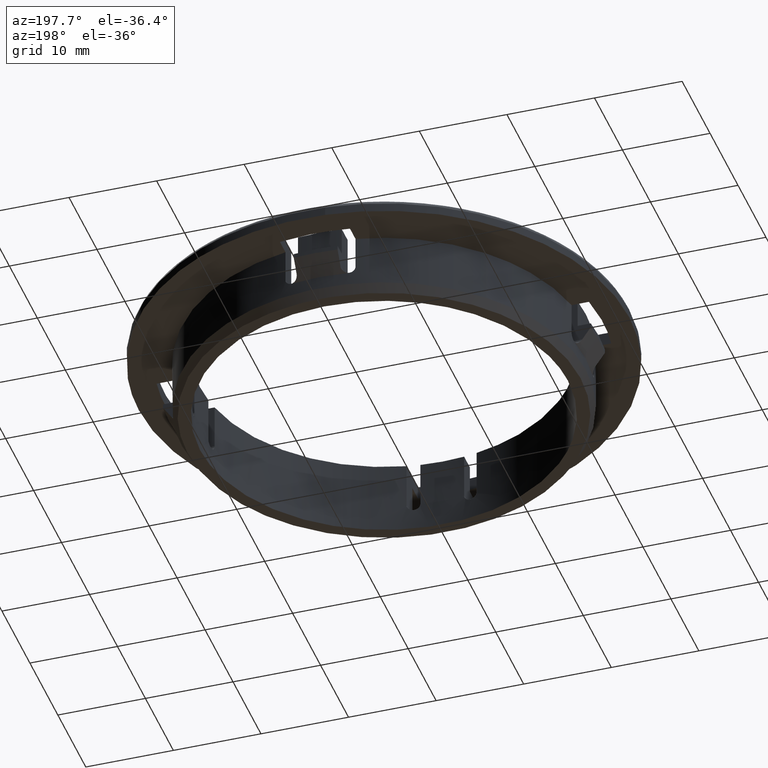
[diagram: clean part render]
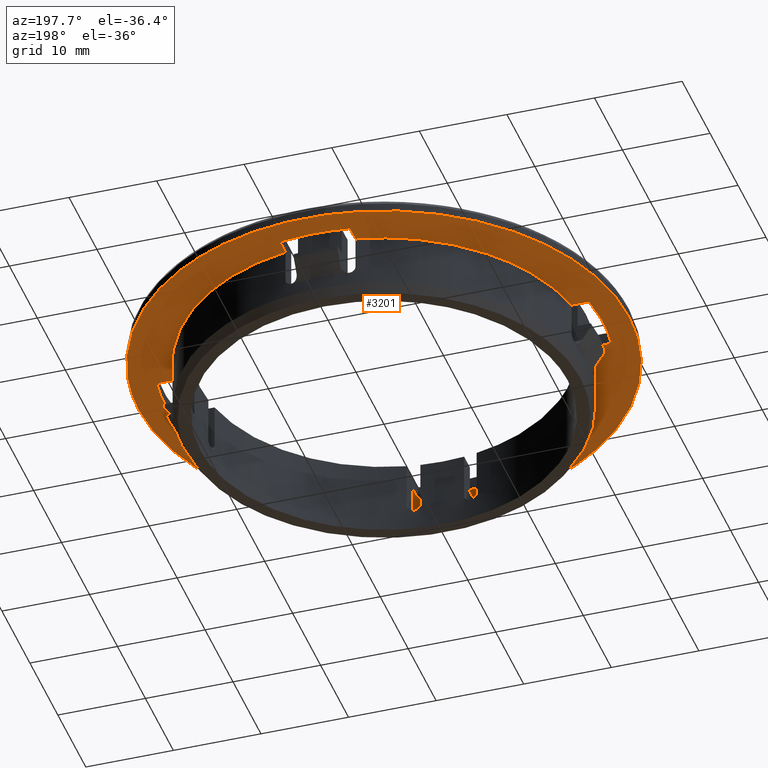
[diagram: same view with one face highlighted and labeled with its STEP entity id]
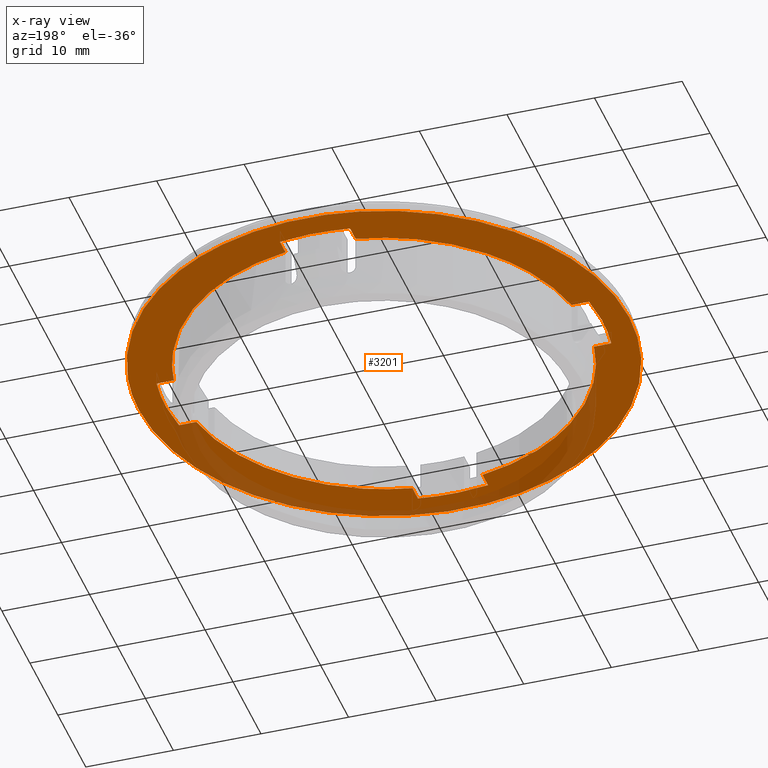
[diagram: x-ray of the same camera — body ghosted, the highlighted face saturated]
A machine part, auxiliary view. The second image highlights one B-rep face of the part: STEP entity #3201.
The next image is the same camera in x-ray: the body ghosted, the highlighted face saturated — about 17% of this face is hidden behind the body in this view.
In plain terms, the highlighted face is a freeform B-spline surface patch.
Its self-contained STEP definition (entity closure, byte-faithful):
#365=CARTESIAN_POINT('',(-2.196838642496592,27.913686606727079,7.0));
#366=VERTEX_POINT('',#365);
#372=CARTESIAN_POINT('',(-28.0,0.0,7.0));
#373=VERTEX_POINT('',#372);
#374=CARTESIAN_POINT('',(-28.0,0.0,7.0));
#375=CARTESIAN_POINT('',(-27.999999999999996,25.882948683526781,6.999999999999998));
#376=CARTESIAN_POINT('',(-2.196838642496591,27.913686606727079,7.0));
#384=(BOUNDED_CURVE()B_SPLINE_CURVE(2,(#374,#375,#376),.UNSPECIFIED.,.F.,.U.)B_SPLINE_CURVE_WITH_KNOTS((3,3),(0.0,0.236331399125175),.UNSPECIFIED.)CURVE()GEOMETRIC_REPRESENTATION_ITEM()RATIONAL_B_SPLINE_CURVE((1.0,0.723120543214163,0.969723561718049))REPRESENTATION_ITEM(''));
#385=EDGE_CURVE('',#373,#366,#384,.T.);
#387=CARTESIAN_POINT('',(28.0,0.0,7.0));
#388=VERTEX_POINT('',#387);
#389=CARTESIAN_POINT('',(28.0,0.0,7.0));
#390=CARTESIAN_POINT('',(28.000000000000004,-28.000000000000004,6.999999999999999));
#391=CARTESIAN_POINT('',(0.0,-28.0,7.0));
#392=CARTESIAN_POINT('',(-28.000000000000004,-28.000000000000004,6.999999999999999));
#393=CARTESIAN_POINT('',(-28.0,0.0,7.0));
#401=(BOUNDED_CURVE()B_SPLINE_CURVE(2,(#389,#390,#391,#392,#393),.UNSPECIFIED.,.F.,.U.)B_SPLINE_CURVE_WITH_KNOTS((3,2,3),(0.500000000000000,0.750000000000000,1.0),.UNSPECIFIED.)CURVE()GEOMETRIC_REPRESENTATION_ITEM()RATIONAL_B_SPLINE_CURVE((1.0,0.707106781186547,1.0,0.707106781186547,1.0))REPRESENTATION_ITEM(''));
#402=EDGE_CURVE('',#388,#373,#401,.T.);
#404=CARTESIAN_POINT('',(15.983521686752010,22.989715841851840,7.0));
#405=VERTEX_POINT('',#404);
#406=CARTESIAN_POINT('',(15.983521686752002,22.989715841851840,7.000000000000001));
#407=CARTESIAN_POINT('',(28.0,14.635300196203909,7.0));
#408=CARTESIAN_POINT('',(28.0,0.0,7.0));
#416=(BOUNDED_CURVE()B_SPLINE_CURVE(2,(#406,#407,#408),.UNSPECIFIED.,.F.,.U.)B_SPLINE_CURVE_WITH_KNOTS((3,3),(0.348090577032411,0.500000000000000),.UNSPECIFIED.)CURVE()GEOMETRIC_REPRESENTATION_ITEM()RATIONAL_B_SPLINE_CURVE((0.860340237695553,0.822027040555715,1.0))REPRESENTATION_ITEM(''));
#417=EDGE_CURVE('',#405,#388,#416,.T.);
#457=CARTESIAN_POINT('',(-2.196838642496591,27.913686606727079,7.0));
#458=CARTESIAN_POINT('',(-1.100114940060294,28.000000000000004,7.000000000000001));
#459=CARTESIAN_POINT('',(0.0,28.0,7.0));
#460=CARTESIAN_POINT('',(8.777036699265663,28.000000000000004,6.999999999999999));
#461=CARTESIAN_POINT('',(15.983521686752002,22.989715841851840,7.000000000000001));
#469=(BOUNDED_CURVE()B_SPLINE_CURVE(2,(#457,#458,#459,#460,#461),.UNSPECIFIED.,.F.,.U.)B_SPLINE_CURVE_WITH_KNOTS((3,2,3),(0.236331399125175,0.250000000000000,0.348090577032411),.UNSPECIFIED.)CURVE()GEOMETRIC_REPRESENTATION_ITEM()RATIONAL_B_SPLINE_CURVE((0.969723561718049,0.983986237972385,1.0,0.885079740630833,0.860340237695553))REPRESENTATION_ITEM(''));
#470=EDGE_CURVE('',#366,#405,#469,.T.);
#1278=CARTESIAN_POINT('',(-16.719879863718550,15.866572324948390,6.999999999999999));
#1279=VERTEX_POINT('',#1278);
#1280=CARTESIAN_POINT('',(-4.0,22.700275328726701,7.0));
#1281=VERTEX_POINT('',#1280);
#1282=CARTESIAN_POINT('',(-16.719879863718550,15.866572324948391,7.000000000000001));
#1283=CARTESIAN_POINT('',(-11.486865308906422,21.381019909928899,7.0));
#1284=CARTESIAN_POINT('',(-4.000000000000009,22.700275328726740,7.0));
#1292=(BOUNDED_CURVE()B_SPLINE_CURVE(2,(#1282,#1283,#1284),.UNSPECIFIED.,.F.,.U.)B_SPLINE_CURVE_WITH_KNOTS((3,3),(0.479244843211862,1.0),.UNSPECIFIED.)CURVE()GEOMETRIC_REPRESENTATION_ITEM()RATIONAL_B_SPLINE_CURVE((0.909699158146508,0.905788405308336,1.0))REPRESENTATION_ITEM(''));
#1293=EDGE_CURVE('',#1279,#1281,#1292,.T.);
#1373=CARTESIAN_POINT('',(4.0,22.700275328726701,7.0));
#1374=VERTEX_POINT('',#1373);
#1380=CARTESIAN_POINT('',(22.700275328726701,4.0,7.0));
#1381=VERTEX_POINT('',#1380);
#1382=CARTESIAN_POINT('',(4.000000000000006,22.700275328726740,7.0));
#1383=CARTESIAN_POINT('',(19.898764842637160,19.898764842637160,7.0));
#1384=CARTESIAN_POINT('',(22.700275328726740,4.000000000000005,7.0));
#1392=(BOUNDED_CURVE()B_SPLINE_CURVE(2,(#1382,#1383,#1384),.UNSPECIFIED.,.F.,.U.)CURVE()GEOMETRIC_REPRESENTATION_ITEM()QUASI_UNIFORM_CURVE()RATIONAL_B_SPLINE_CURVE((1.0,0.819086583275079,1.0))REPRESENTATION_ITEM(''));
#1393=EDGE_CURVE('',#1374,#1381,#1392,.T.);
#1473=CARTESIAN_POINT('',(22.700275328726701,-4.0,7.0));
#1474=VERTEX_POINT('',#1473);
#1480=CARTESIAN_POINT('',(4.0,-22.700275328726701,7.0));
#1481=VERTEX_POINT('',#1480);
#1482=CARTESIAN_POINT('',(22.700275328726750,-3.999999999999999,7.0));
#1483=CARTESIAN_POINT('',(19.898764842637171,-19.898764842637149,7.0));
#1484=CARTESIAN_POINT('',(4.000000000000017,-22.700275328726740,7.0));
#1492=(BOUNDED_CURVE()B_SPLINE_CURVE(2,(#1482,#1483,#1484),.UNSPECIFIED.,.F.,.U.)CURVE()GEOMETRIC_REPRESENTATION_ITEM()QUASI_UNIFORM_CURVE()RATIONAL_B_SPLINE_CURVE((1.0,0.819086583275078,1.0))REPRESENTATION_ITEM(''));
#1493=EDGE_CURVE('',#1474,#1481,#1492,.T.);
#1573=CARTESIAN_POINT('',(-4.0,-22.700275328726701,7.0));
#1574=VERTEX_POINT('',#1573);
#1580=CARTESIAN_POINT('',(-15.866572325489550,-16.719879863205001,6.999999999999999));
#1581=VERTEX_POINT('',#1580);
#1582=CARTESIAN_POINT('',(-4.000000000000009,-22.700275328726740,7.0));
#1583=CARTESIAN_POINT('',(-10.833419069074353,-21.496163225218154,7.000000000000001));
#1584=CARTESIAN_POINT('',(-15.866572325489548,-16.719879863205001,6.999999999999999));
#1592=(BOUNDED_CURVE()B_SPLINE_CURVE(2,(#1582,#1583,#1584),.UNSPECIFIED.,.F.,.U.)B_SPLINE_CURVE_WITH_KNOTS((3,3),(0.0,0.479244843263187),.UNSPECIFIED.)CURVE()GEOMETRIC_REPRESENTATION_ITEM()RATIONAL_B_SPLINE_CURVE((1.0,0.913298177957457,0.909699158145737))REPRESENTATION_ITEM(''));
#1593=EDGE_CURVE('',#1574,#1581,#1592,.T.);
#1626=CARTESIAN_POINT('',(-22.700275328726701,4.0,7.0));
#1627=VERTEX_POINT('',#1626);
#1628=CARTESIAN_POINT('',(-22.700275328726740,4.000000000000007,7.0));
#1629=CARTESIAN_POINT('',(-21.496163225359346,10.833419068273043,7.0));
#1630=CARTESIAN_POINT('',(-16.719879863718550,15.866572324948391,7.000000000000001));
#1638=(BOUNDED_CURVE()B_SPLINE_CURVE(2,(#1628,#1629,#1630),.UNSPECIFIED.,.F.,.U.)B_SPLINE_CURVE_WITH_KNOTS((3,3),(0.0,0.479244843211862),.UNSPECIFIED.)CURVE()GEOMETRIC_REPRESENTATION_ITEM()RATIONAL_B_SPLINE_CURVE((1.0,0.913298177966743,0.909699158146508))REPRESENTATION_ITEM(''));
#1639=EDGE_CURVE('',#1627,#1279,#1638,.T.);
#1645=CARTESIAN_POINT('',(-22.700275328726701,-4.0,7.0));
#1646=VERTEX_POINT('',#1645);
#1647=CARTESIAN_POINT('',(-15.866572325489548,-16.719879863205001,6.999999999999999));
#1648=CARTESIAN_POINT('',(-21.381019910072446,-11.486865308091781,7.0));
#1649=CARTESIAN_POINT('',(-22.700275328726740,-4.000000000000019,7.0));
#1657=(BOUNDED_CURVE()B_SPLINE_CURVE(2,(#1647,#1648,#1649),.UNSPECIFIED.,.F.,.U.)B_SPLINE_CURVE_WITH_KNOTS((3,3),(0.479244843263187,1.0),.UNSPECIFIED.)CURVE()GEOMETRIC_REPRESENTATION_ITEM()RATIONAL_B_SPLINE_CURVE((0.909699158145737,0.905788405317621,1.0))REPRESENTATION_ITEM(''));
#1658=EDGE_CURVE('',#1581,#1646,#1657,.T.);
#2283=CARTESIAN_POINT('',(24.677925358506101,-4.0,7.0));
#2284=VERTEX_POINT('',#2283);
#2290=CARTESIAN_POINT('',(22.700275328726701,-4.0,7.0));
#2291=CARTESIAN_POINT('',(24.677925358506101,-4.0,7.0));
#2292=QUASI_UNIFORM_CURVE('',1,(#2290,#2291),.UNSPECIFIED.,.F.,.U.);
#2293=EDGE_CURVE('',#1474,#2284,#2292,.T.);
#2306=CARTESIAN_POINT('',(24.677925358506101,4.0,7.0));
#2307=VERTEX_POINT('',#2306);
#2308=CARTESIAN_POINT('',(24.677925358506101,4.0,7.0));
#2309=CARTESIAN_POINT('',(22.700275328726701,4.0,7.0));
#2310=QUASI_UNIFORM_CURVE('',1,(#2308,#2309),.UNSPECIFIED.,.F.,.U.);
#2311=EDGE_CURVE('',#2307,#1381,#2310,.T.);
#2356=CARTESIAN_POINT('',(24.677925358506130,-4.000000000000002,7.0));
#2357=CARTESIAN_POINT('',(25.326278077284616,4.336809E-015,7.0));
#2358=CARTESIAN_POINT('',(24.677925358506130,3.999999999999996,7.0));
#2366=(BOUNDED_CURVE()B_SPLINE_CURVE(2,(#2356,#2357,#2358),.UNSPECIFIED.,.F.,.U.)CURVE()GEOMETRIC_REPRESENTATION_ITEM()QUASI_UNIFORM_CURVE()RATIONAL_B_SPLINE_CURVE((1.0,0.987117014340245,1.0))REPRESENTATION_ITEM(''));
#2367=EDGE_CURVE('',#2284,#2307,#2366,.T.);
#2388=CARTESIAN_POINT('',(-4.0,-24.677925358506101,7.0));
#2389=VERTEX_POINT('',#2388);
#2395=CARTESIAN_POINT('',(-4.0,-22.700275328726701,7.0));
#2396=CARTESIAN_POINT('',(-4.0,-24.677925358506101,7.0));
#2397=QUASI_UNIFORM_CURVE('',1,(#2395,#2396),.UNSPECIFIED.,.F.,.U.);
#2398=EDGE_CURVE('',#1574,#2389,#2397,.T.);
#2411=CARTESIAN_POINT('',(4.0,-24.677925358506101,7.0));
#2412=VERTEX_POINT('',#2411);
#2413=CARTESIAN_POINT('',(4.0,-24.677925358506101,7.0));
#2414=CARTESIAN_POINT('',(4.0,-22.700275328726701,7.0));
#2415=QUASI_UNIFORM_CURVE('',1,(#2413,#2414),.UNSPECIFIED.,.F.,.U.);
#2416=EDGE_CURVE('',#2412,#1481,#2415,.T.);
#2461=CARTESIAN_POINT('',(-4.000000000000012,-24.677925358506130,7.0));
#2462=CARTESIAN_POINT('',(-3.469447E-015,-25.326278077284620,7.0));
#2463=CARTESIAN_POINT('',(4.000000000000008,-24.677925358506130,7.0));
#2471=(BOUNDED_CURVE()B_SPLINE_CURVE(2,(#2461,#2462,#2463),.UNSPECIFIED.,.F.,.U.)CURVE()GEOMETRIC_REPRESENTATION_ITEM()QUASI_UNIFORM_CURVE()RATIONAL_B_SPLINE_CURVE((1.0,0.987117014340245,1.0))REPRESENTATION_ITEM(''));
#2472=EDGE_CURVE('',#2389,#2412,#2471,.T.);
#2493=CARTESIAN_POINT('',(-24.677925358506101,4.0,7.0));
#2494=VERTEX_POINT('',#2493);
#2500=CARTESIAN_POINT('',(-22.700275328726701,4.0,7.0));
#2501=CARTESIAN_POINT('',(-24.677925358506101,4.0,7.0));
#2502=QUASI_UNIFORM_CURVE('',1,(#2500,#2501),.UNSPECIFIED.,.F.,.U.);
#2503=EDGE_CURVE('',#1627,#2494,#2502,.T.);
#2516=CARTESIAN_POINT('',(-24.677925358506101,-4.0,7.0));
#2517=VERTEX_POINT('',#2516);
#2518=CARTESIAN_POINT('',(-24.677925358506101,-4.0,7.0));
#2519=CARTESIAN_POINT('',(-22.700275328726701,-4.0,7.0));
#2520=QUASI_UNIFORM_CURVE('',1,(#2518,#2519),.UNSPECIFIED.,.F.,.U.);
#2521=EDGE_CURVE('',#2517,#1646,#2520,.T.);
#2566=CARTESIAN_POINT('',(-24.677925358506130,4.000000000000016,7.0));
#2567=CARTESIAN_POINT('',(-25.326278077284620,1.214306E-014,7.0));
#2568=CARTESIAN_POINT('',(-24.677925358506130,-4.000000000000004,7.0));
#2576=(BOUNDED_CURVE()B_SPLINE_CURVE(2,(#2566,#2567,#2568),.UNSPECIFIED.,.F.,.U.)CURVE()GEOMETRIC_REPRESENTATION_ITEM()QUASI_UNIFORM_CURVE()RATIONAL_B_SPLINE_CURVE((1.0,0.987117014340245,1.0))REPRESENTATION_ITEM(''));
#2577=EDGE_CURVE('',#2494,#2517,#2576,.T.);
#2720=CARTESIAN_POINT('',(4.0,24.677925358506101,7.0));
#2721=VERTEX_POINT('',#2720);
#2727=CARTESIAN_POINT('',(4.0,22.700275328726701,7.0));
#2728=CARTESIAN_POINT('',(4.0,24.677925358506101,7.0));
#2729=QUASI_UNIFORM_CURVE('',1,(#2727,#2728),.UNSPECIFIED.,.F.,.U.);
#2730=EDGE_CURVE('',#1374,#2721,#2729,.T.);
#2743=CARTESIAN_POINT('',(-4.0,24.677925358506101,7.0));
#2744=VERTEX_POINT('',#2743);
#2745=CARTESIAN_POINT('',(-4.0,24.677925358506101,7.0));
#2746=CARTESIAN_POINT('',(-4.0,22.700275328726701,7.0));
#2747=QUASI_UNIFORM_CURVE('',1,(#2745,#2746),.UNSPECIFIED.,.F.,.U.);
#2748=EDGE_CURVE('',#2744,#1281,#2747,.T.);
#2793=CARTESIAN_POINT('',(4.000000000000014,24.677925358506130,7.0));
#2794=CARTESIAN_POINT('',(8.673617E-015,25.326278077284620,7.0));
#2795=CARTESIAN_POINT('',(-4.000000000000005,24.677925358506130,7.0));
#2803=(BOUNDED_CURVE()B_SPLINE_CURVE(2,(#2793,#2794,#2795),.UNSPECIFIED.,.F.,.U.)CURVE()GEOMETRIC_REPRESENTATION_ITEM()QUASI_UNIFORM_CURVE()RATIONAL_B_SPLINE_CURVE((1.0,0.987117014340245,1.0))REPRESENTATION_ITEM(''));
#2804=EDGE_CURVE('',#2721,#2744,#2803,.T.);
#3170=CARTESIAN_POINT('',(-30.797199891461140,-30.797130866850619,7.0));
#3171=CARTESIAN_POINT('',(30.797201393498181,-30.797130866850619,7.0));
#3172=CARTESIAN_POINT('',(-30.797199891461140,30.795750494803190,7.0));
#3173=CARTESIAN_POINT('',(30.797201393498181,30.795750494803190,7.0));
#3174=B_SPLINE_SURFACE_WITH_KNOTS('',1,1,((#3170,#3172),(#3171,#3173)),.UNSPECIFIED.,.F.,.F.,.U.,(2,2),(2,2),(0.0,61.594401284959318),(0.0,61.592881361653802),.UNSPECIFIED.);
#3175=ORIENTED_EDGE('',*,*,#385,.T.);
#3176=ORIENTED_EDGE('',*,*,#470,.T.);
#3177=ORIENTED_EDGE('',*,*,#417,.T.);
#3178=ORIENTED_EDGE('',*,*,#402,.T.);
#3179=EDGE_LOOP('',(#3175,#3176,#3177,#3178));
#3180=FACE_OUTER_BOUND('',#3179,.T.);
#3181=ORIENTED_EDGE('',*,*,#1493,.F.);
#3182=ORIENTED_EDGE('',*,*,#2293,.T.);
#3183=ORIENTED_EDGE('',*,*,#2367,.T.);
#3184=ORIENTED_EDGE('',*,*,#2311,.T.);
#3185=ORIENTED_EDGE('',*,*,#1393,.F.);
#3186=ORIENTED_EDGE('',*,*,#2730,.T.);
#3187=ORIENTED_EDGE('',*,*,#2804,.T.);
#3188=ORIENTED_EDGE('',*,*,#2748,.T.);
#3189=ORIENTED_EDGE('',*,*,#1293,.F.);
#3190=ORIENTED_EDGE('',*,*,#1639,.F.);
#3191=ORIENTED_EDGE('',*,*,#2503,.T.);
#3192=ORIENTED_EDGE('',*,*,#2577,.T.);
#3193=ORIENTED_EDGE('',*,*,#2521,.T.);
#3194=ORIENTED_EDGE('',*,*,#1658,.F.);
#3195=ORIENTED_EDGE('',*,*,#1593,.F.);
#3196=ORIENTED_EDGE('',*,*,#2398,.T.);
#3197=ORIENTED_EDGE('',*,*,#2472,.T.);
#3198=ORIENTED_EDGE('',*,*,#2416,.T.);
#3199=EDGE_LOOP('',(#3181,#3182,#3183,#3184,#3185,#3186,#3187,#3188,#3189,#3190,#3191,#3192,#3193,#3194,#3195,#3196,#3197,#3198));
#3200=FACE_BOUND('',#3199,.T.);
#3201=ADVANCED_FACE('',(#3180,#3200),#3174,.F.);